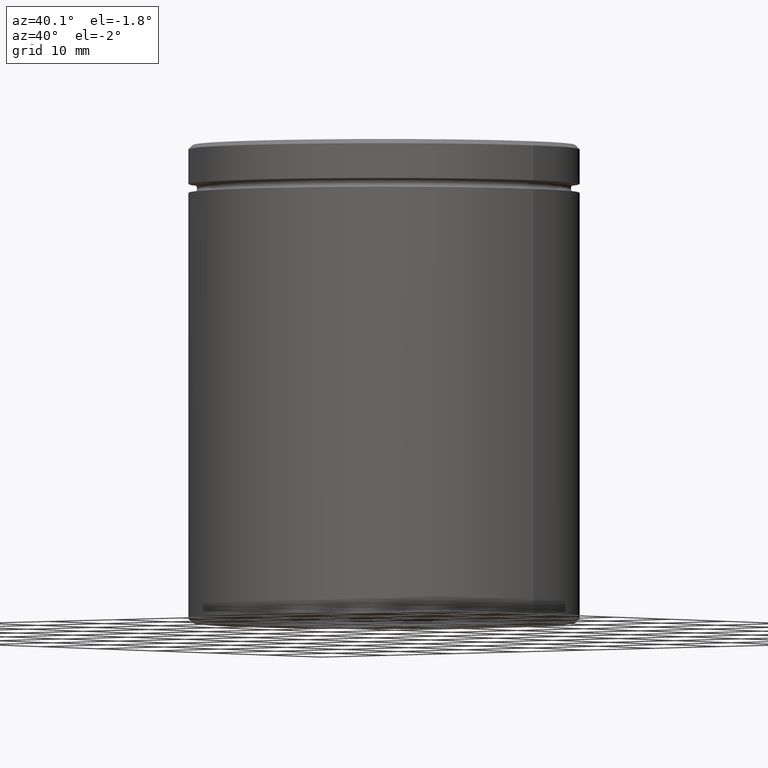
[diagram: clean part render]
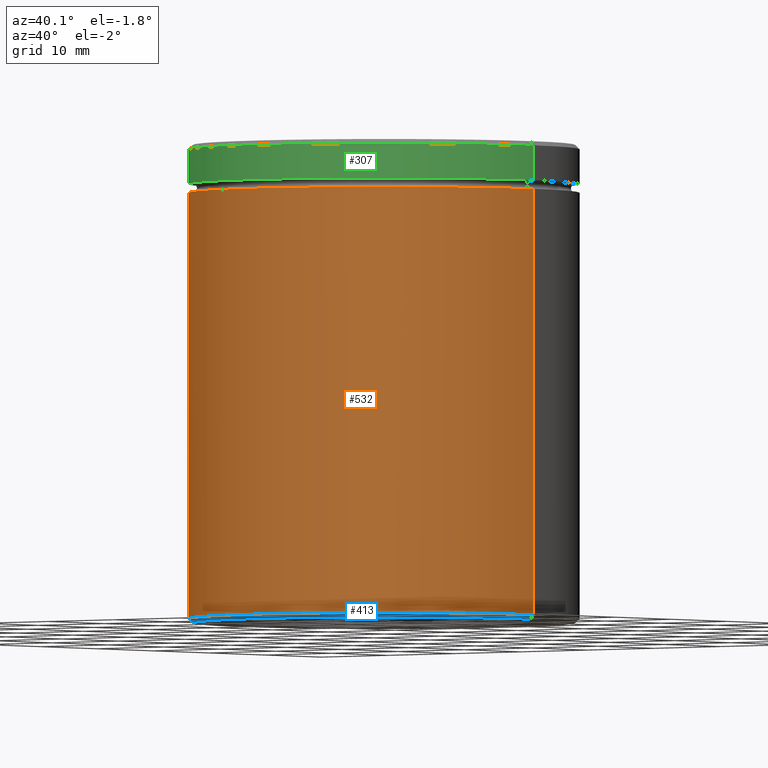
[diagram: same view with three faces highlighted in distinct colors, each labeled with its STEP entity id]
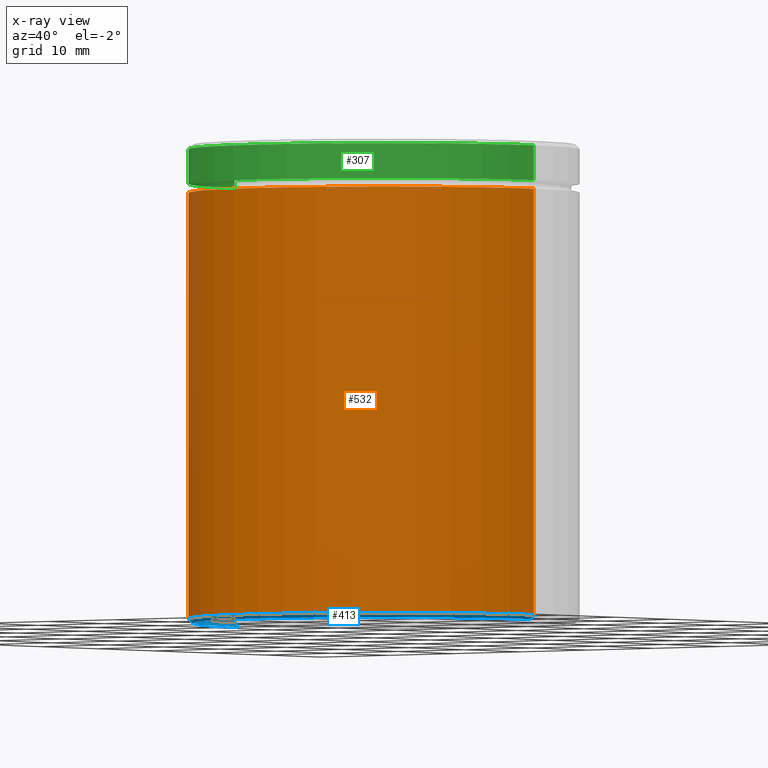
[diagram: x-ray of the same camera — body ghosted, the three highlighted faces saturated]
A machine part, auxiliary view with three faces highlighted in distinct colors.
The next image is the same camera in x-ray (body ghosted, the three faces saturated) — at least one of them is partly hidden behind the body in this view.
Their STEP definitions:

[orange] entity #532 — the highlighted cylindrical surface (partial cylindrical patch) has radius 22.5 mm, axis along (-0, -0, 1).
#35 = AXIS2_PLACEMENT_3D ( 'NONE', #398, #517, #549 ) ;
#41 = VERTEX_POINT ( 'NONE', #553 ) ;
#77 = DIRECTION ( 'NONE',  ( 1.000000000000000000, 0.000000000000000000, 0.000000000000000000 ) ) ;
#89 = CIRCLE ( 'NONE', #142, 22.50000000000000000 ) ;
#106 = CIRCLE ( 'NONE', #35, 22.50000000000000000 ) ;
#129 = CARTESIAN_POINT ( 'NONE',  ( 22.50000000000000000, 0.000000000000000000, -5.500000000000000000 ) ) ;
#133 = CARTESIAN_POINT ( 'NONE',  ( -22.50000000000000000, 2.755455298081544778E-15, -54.49999999999999289 ) ) ;
#142 = AXIS2_PLACEMENT_3D ( 'NONE', #265, #216, #569 ) ;
#157 = DIRECTION ( 'NONE',  ( -0.000000000000000000, -0.000000000000000000, 1.000000000000000000 ) ) ;
#158 = ORIENTED_EDGE ( 'NONE', *, *, #544, .F. ) ;
#164 = CARTESIAN_POINT ( 'NONE',  ( -22.50000000000000000, 2.755455298081544778E-15, -5.500000000000000000 ) ) ;
#171 = ORIENTED_EDGE ( 'NONE', *, *, #445, .T. ) ;
#193 = VECTOR ( 'NONE', #384, 1000.000000000000000 ) ;
#200 = CARTESIAN_POINT ( 'NONE',  ( 22.50000000000000000, 0.000000000000000000, 0.000000000000000000 ) ) ;
#202 = CARTESIAN_POINT ( 'NONE',  ( 0.000000000000000000, 0.000000000000000000, 0.000000000000000000 ) ) ;
#216 = DIRECTION ( 'NONE',  ( -0.000000000000000000, -0.000000000000000000, 1.000000000000000000 ) ) ;
#230 = FACE_OUTER_BOUND ( 'NONE', #481, .T. ) ;
#234 = CARTESIAN_POINT ( 'NONE',  ( -22.50000000000000000, 2.755455298081544778E-15, 0.000000000000000000 ) ) ;
#243 = DIRECTION ( 'NONE',  ( -0.000000000000000000, -0.000000000000000000, 1.000000000000000000 ) ) ;
#265 = CARTESIAN_POINT ( 'NONE',  ( 0.000000000000000000, 0.000000000000000000, -54.49999999999999289 ) ) ;
#270 = VERTEX_POINT ( 'NONE', #129 ) ;
#296 = CYLINDRICAL_SURFACE ( 'NONE', #346, 22.50000000000000000 ) ;
#297 = ORIENTED_EDGE ( 'NONE', *, *, #313, .T. ) ;
#313 = EDGE_CURVE ( 'NONE', #41, #270, #474, .T. ) ;
#337 = ORIENTED_EDGE ( 'NONE', *, *, #448, .F. ) ;
#346 = AXIS2_PLACEMENT_3D ( 'NONE', #202, #157, #77 ) ;
#369 = VECTOR ( 'NONE', #243, 1000.000000000000000 ) ;
#384 = DIRECTION ( 'NONE',  ( -0.000000000000000000, -0.000000000000000000, 1.000000000000000000 ) ) ;
#398 = CARTESIAN_POINT ( 'NONE',  ( 0.000000000000000000, 0.000000000000000000, -5.500000000000000000 ) ) ;
#445 = EDGE_CURVE ( 'NONE', #498, #41, #89, .T. ) ;
#448 = EDGE_CURVE ( 'NONE', #540, #270, #106, .T. ) ;
#474 = LINE ( 'NONE', #200, #193 ) ;
#481 = EDGE_LOOP ( 'NONE', ( #158, #171, #297, #337 ) ) ;
#498 = VERTEX_POINT ( 'NONE', #133 ) ;
#517 = DIRECTION ( 'NONE',  ( -0.000000000000000000, -0.000000000000000000, 1.000000000000000000 ) ) ;
#521 = LINE ( 'NONE', #234, #369 ) ;
#532 = ADVANCED_FACE ( 'NONE', ( #230 ), #296, .T. ) ;
#540 = VERTEX_POINT ( 'NONE', #164 ) ;
#544 = EDGE_CURVE ( 'NONE', #498, #540, #521, .T. ) ;
#549 = DIRECTION ( 'NONE',  ( 1.000000000000000000, 0.000000000000000000, 0.000000000000000000 ) ) ;
#553 = CARTESIAN_POINT ( 'NONE',  ( 22.50000000000000000, 0.000000000000000000, -54.49999999999999289 ) ) ;
#569 = DIRECTION ( 'NONE',  ( -1.000000000000000000, 0.000000000000000000, 0.000000000000000000 ) ) ;

[blue] entity #413 — the highlighted conical surface has half-angle 45 deg.
#27 = AXIS2_PLACEMENT_3D ( 'NONE', #485, #44, #442 ) ;
#41 = VERTEX_POINT ( 'NONE', #553 ) ;
#44 = DIRECTION ( 'NONE',  ( 0.000000000000000000, 0.000000000000000000, -1.000000000000000000 ) ) ;
#57 = FACE_OUTER_BOUND ( 'NONE', #461, .T. ) ;
#69 = ORIENTED_EDGE ( 'NONE', *, *, #199, .T. ) ;
#89 = CIRCLE ( 'NONE', #142, 22.50000000000000000 ) ;
#98 = DIRECTION ( 'NONE',  ( -0.000000000000000000, -0.000000000000000000, 1.000000000000000000 ) ) ;
#107 = LINE ( 'NONE', #456, #141 ) ;
#113 = CARTESIAN_POINT ( 'NONE',  ( -22.50000000000000000, 2.755455298081544778E-15, -54.49999999999999289 ) ) ;
#117 = CARTESIAN_POINT ( 'NONE',  ( 21.99999999999999289, 0.000000000000000000, -55.00000000000000000 ) ) ;
#133 = CARTESIAN_POINT ( 'NONE',  ( -22.50000000000000000, 2.755455298081544778E-15, -54.49999999999999289 ) ) ;
#141 = VECTOR ( 'NONE', #552, 1000.000000000000114 ) ;
#142 = AXIS2_PLACEMENT_3D ( 'NONE', #265, #216, #569 ) ;
#179 = VERTEX_POINT ( 'NONE', #467 ) ;
#199 = EDGE_CURVE ( 'NONE', #478, #41, #107, .T. ) ;
#216 = DIRECTION ( 'NONE',  ( -0.000000000000000000, -0.000000000000000000, 1.000000000000000000 ) ) ;
#262 = ORIENTED_EDGE ( 'NONE', *, *, #335, .F. ) ;
#265 = CARTESIAN_POINT ( 'NONE',  ( 0.000000000000000000, 0.000000000000000000, -54.49999999999999289 ) ) ;
#305 = LINE ( 'NONE', #113, #495 ) ;
#335 = EDGE_CURVE ( 'NONE', #478, #179, #388, .T. ) ;
#365 = ORIENTED_EDGE ( 'NONE', *, *, #445, .F. ) ;
#388 = CIRCLE ( 'NONE', #27, 21.99999999999999289 ) ;
#413 = ADVANCED_FACE ( 'NONE', ( #57 ), #438, .T. ) ;
#415 = CARTESIAN_POINT ( 'NONE',  ( 0.000000000000000000, 0.000000000000000000, -54.49999999999999289 ) ) ;
#435 = ORIENTED_EDGE ( 'NONE', *, *, #475, .F. ) ;
#438 = CONICAL_SURFACE ( 'NONE', #511, 22.50000000000000000, 0.7853981633974482790 ) ;
#442 = DIRECTION ( 'NONE',  ( -1.000000000000000000, 0.000000000000000000, 0.000000000000000000 ) ) ;
#445 = EDGE_CURVE ( 'NONE', #498, #41, #89, .T. ) ;
#455 = DIRECTION ( 'NONE',  ( 1.000000000000000000, 0.000000000000000000, 0.000000000000000000 ) ) ;
#456 = CARTESIAN_POINT ( 'NONE',  ( 22.50000000000000000, 0.000000000000000000, -54.49999999999999289 ) ) ;
#461 = EDGE_LOOP ( 'NONE', ( #435, #262, #69, #365 ) ) ;
#466 = DIRECTION ( 'NONE',  ( -0.7071067811865474617, 8.659560562354932858E-17, 0.7071067811865474617 ) ) ;
#467 = CARTESIAN_POINT ( 'NONE',  ( -21.99999999999999289, 2.724839128102860202E-15, -55.00000000000000000 ) ) ;
#475 = EDGE_CURVE ( 'NONE', #179, #498, #305, .T. ) ;
#478 = VERTEX_POINT ( 'NONE', #117 ) ;
#485 = CARTESIAN_POINT ( 'NONE',  ( 0.000000000000000000, 0.000000000000000000, -55.00000000000000000 ) ) ;
#495 = VECTOR ( 'NONE', #466, 1000.000000000000114 ) ;
#498 = VERTEX_POINT ( 'NONE', #133 ) ;
#511 = AXIS2_PLACEMENT_3D ( 'NONE', #415, #98, #455 ) ;
#552 = DIRECTION ( 'NONE',  ( 0.7071067811865474617, 0.000000000000000000, 0.7071067811865474617 ) ) ;
#553 = CARTESIAN_POINT ( 'NONE',  ( 22.50000000000000000, 0.000000000000000000, -54.49999999999999289 ) ) ;
#569 = DIRECTION ( 'NONE',  ( -1.000000000000000000, 0.000000000000000000, 0.000000000000000000 ) ) ;

[green] entity #307 — the highlighted cylindrical surface (partial cylindrical patch) has radius 22.5 mm, axis along (-0, -0, 1).
#49 = AXIS2_PLACEMENT_3D ( 'NONE', #523, #311, #482 ) ;
#74 = AXIS2_PLACEMENT_3D ( 'NONE', #154, #197, #561 ) ;
#88 = ORIENTED_EDGE ( 'NONE', *, *, #537, .T. ) ;
#127 = CARTESIAN_POINT ( 'NONE',  ( 22.50000000000000000, 0.000000000000000000, -0.5000000000000212053 ) ) ;
#149 = DIRECTION ( 'NONE',  ( -0.000000000000000000, -0.000000000000000000, 1.000000000000000000 ) ) ;
#154 = CARTESIAN_POINT ( 'NONE',  ( 0.000000000000000000, 0.000000000000000000, -0.5000000000000212053 ) ) ;
#160 = LINE ( 'NONE', #260, #287 ) ;
#163 = DIRECTION ( 'NONE',  ( -0.000000000000000000, -0.000000000000000000, 1.000000000000000000 ) ) ;
#166 = EDGE_CURVE ( 'NONE', #500, #221, #235, .T. ) ;
#169 = AXIS2_PLACEMENT_3D ( 'NONE', #195, #186, #373 ) ;
#173 = EDGE_CURVE ( 'NONE', #500, #434, #238, .T. ) ;
#186 = DIRECTION ( 'NONE',  ( -0.000000000000000000, -0.000000000000000000, 1.000000000000000000 ) ) ;
#195 = CARTESIAN_POINT ( 'NONE',  ( 0.000000000000000000, 0.000000000000000000, -4.500000000000000888 ) ) ;
#197 = DIRECTION ( 'NONE',  ( 0.000000000000000000, 0.000000000000000000, -1.000000000000000000 ) ) ;
#204 = FACE_OUTER_BOUND ( 'NONE', #277, .T. ) ;
#209 = CYLINDRICAL_SURFACE ( 'NONE', #49, 22.50000000000000000 ) ;
#221 = VERTEX_POINT ( 'NONE', #547 ) ;
#235 = CIRCLE ( 'NONE', #169, 22.50000000000000000 ) ;
#238 = LINE ( 'NONE', #291, #276 ) ;
#260 = CARTESIAN_POINT ( 'NONE',  ( 22.50000000000000000, 0.000000000000000000, 0.000000000000000000 ) ) ;
#276 = VECTOR ( 'NONE', #149, 1000.000000000000000 ) ;
#277 = EDGE_LOOP ( 'NONE', ( #306, #309, #88, #361 ) ) ;
#287 = VECTOR ( 'NONE', #163, 1000.000000000000000 ) ;
#291 = CARTESIAN_POINT ( 'NONE',  ( -22.50000000000000000, 2.755455298081544778E-15, 0.000000000000000000 ) ) ;
#293 = VERTEX_POINT ( 'NONE', #127 ) ;
#306 = ORIENTED_EDGE ( 'NONE', *, *, #173, .F. ) ;
#307 = ADVANCED_FACE ( 'NONE', ( #204 ), #209, .T. ) ;
#309 = ORIENTED_EDGE ( 'NONE', *, *, #166, .T. ) ;
#311 = DIRECTION ( 'NONE',  ( -0.000000000000000000, -0.000000000000000000, 1.000000000000000000 ) ) ;
#361 = ORIENTED_EDGE ( 'NONE', *, *, #465, .T. ) ;
#373 = DIRECTION ( 'NONE',  ( 1.000000000000000000, 0.000000000000000000, 0.000000000000000000 ) ) ;
#434 = VERTEX_POINT ( 'NONE', #497 ) ;
#465 = EDGE_CURVE ( 'NONE', #293, #434, #534, .T. ) ;
#482 = DIRECTION ( 'NONE',  ( 1.000000000000000000, 0.000000000000000000, 0.000000000000000000 ) ) ;
#497 = CARTESIAN_POINT ( 'NONE',  ( -22.50000000000000000, 2.755455298081544778E-15, -0.5000000000000212053 ) ) ;
#500 = VERTEX_POINT ( 'NONE', #527 ) ;
#523 = CARTESIAN_POINT ( 'NONE',  ( 0.000000000000000000, 0.000000000000000000, 0.000000000000000000 ) ) ;
#527 = CARTESIAN_POINT ( 'NONE',  ( -22.50000000000000000, 2.755455298081544778E-15, -4.500000000000000888 ) ) ;
#534 = CIRCLE ( 'NONE', #74, 22.50000000000000000 ) ;
#537 = EDGE_CURVE ( 'NONE', #221, #293, #160, .T. ) ;
#547 = CARTESIAN_POINT ( 'NONE',  ( 22.50000000000000000, 0.000000000000000000, -4.500000000000000888 ) ) ;
#561 = DIRECTION ( 'NONE',  ( 1.000000000000000000, 0.000000000000000000, 0.000000000000000000 ) ) ;